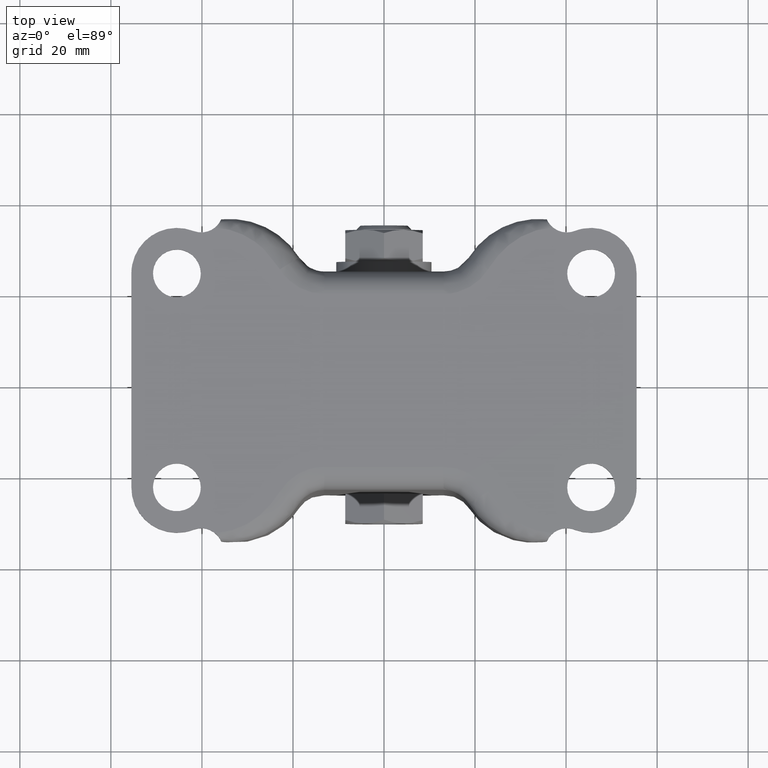
[diagram: clean part render]
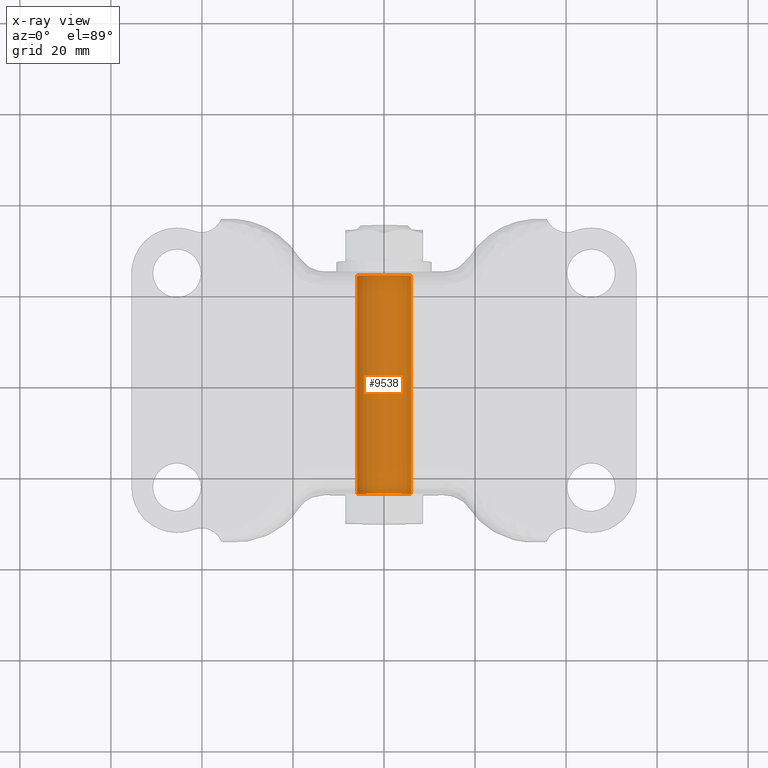
[diagram: x-ray — body ghosted, one internal face saturated and labeled with its STEP entity id]
A machine part, top view, then the same camera in x-ray: the body is ghosted and one INTERNAL B-rep face — a face not visible from any outside direction — is saturated and labeled: STEP entity #9538.
In plain terms, the highlighted face is a freeform B-spline surface patch.
Its self-contained STEP definition (entity closure, byte-faithful):
#9436=CARTESIAN_POINT('',(5.958057158181998,25.200025000000007,-60.208171407940654));
#9437=CARTESIAN_POINT('',(5.978325692691634,25.200025000000011,-60.037654371827962));
#9438=CARTESIAN_POINT('',(5.988808790531200,25.200025000000000,-59.866257237209240));
#9439=CARTESIAN_POINT('',(6.355100027740342,25.200025000000004,-53.877448446678052));
#9440=CARTESIAN_POINT('',(0.366291237209142,25.200025000000000,-53.511157209468898));
#9441=CARTESIAN_POINT('',(-5.622517553322059,25.200025000000004,-53.144865972259758));
#9442=CARTESIAN_POINT('',(-5.988808790531200,25.200025000000000,-59.133674762790960));
#9443=CARTESIAN_POINT('',(5.958057158181998,-25.231025625000004,-60.208171407940654));
#9444=CARTESIAN_POINT('',(5.978325692691634,-25.231025624999997,-60.037654371827962));
#9445=CARTESIAN_POINT('',(5.988808790531200,-25.231025625000001,-59.866257237209240));
#9446=CARTESIAN_POINT('',(6.355100027740342,-25.231025624999997,-53.877448446678052));
#9447=CARTESIAN_POINT('',(0.366291237209142,-25.231025625000001,-53.511157209468898));
#9448=CARTESIAN_POINT('',(-5.622517553322059,-25.231025624999997,-53.144865972259758));
#9449=CARTESIAN_POINT('',(-5.988808790531200,-25.231025625000001,-59.133674762790960));
#9457=(BOUNDED_SURFACE()B_SPLINE_SURFACE(2,1,((#9436,#9443),(#9437,#9444),(#9438,#9445),(#9439,#9446),(#9440,#9447),(#9441,#9448),(#9442,#9449)),.UNSPECIFIED.,.F.,.F.,.U.)B_SPLINE_SURFACE_WITH_KNOTS((3,2,2,3),(2,2),(0.0,0.397645019878172,10.338770516832460,20.279896013786740),(0.0,50.431050625000012),.UNSPECIFIED.)GEOMETRIC_REPRESENTATION_ITEM()RATIONAL_B_SPLINE_SURFACE(((0.977505800795127,0.977505800795127),(0.988284271247462,0.988284271247462),(1.0,1.0),(0.707106781186548,0.707106781186548),(1.0,1.0),(0.707106781186548,0.707106781186548),(1.0,1.0)))REPRESENTATION_ITEM('')SURFACE());
#9458=CARTESIAN_POINT('',(5.958057158177388,24.0,-60.208171407979442));
#9459=VERTEX_POINT('',#9458);
#9460=CARTESIAN_POINT('',(0.0,24.0,-53.499966000000100));
#9461=VERTEX_POINT('',#9460);
#9462=CARTESIAN_POINT('',(5.958057158177387,23.999999999999996,-60.208171407979435));
#9463=CARTESIAN_POINT('',(6.000000000000001,24.000000000000007,-59.855310717950758));
#9464=CARTESIAN_POINT('',(6.0,24.0,-59.499966000000100));
#9465=CARTESIAN_POINT('',(6.0,23.999999999999996,-53.499966000000100));
#9466=CARTESIAN_POINT('',(0.0,24.0,-53.499966000000100));
#9474=(BOUNDED_CURVE()B_SPLINE_CURVE(2,(#9462,#9463,#9464,#9465,#9466),.UNSPECIFIED.,.F.,.U.)B_SPLINE_CURVE_WITH_KNOTS((3,2,3),(0.229562473513444,0.250000000000000,0.500000000000000),.UNSPECIFIED.)CURVE()GEOMETRIC_REPRESENTATION_ITEM()RATIONAL_B_SPLINE_CURVE((0.956026754183573,0.976055948331069,1.0,0.707106781186548,1.0))REPRESENTATION_ITEM(''));
#9475=EDGE_CURVE('',#9459,#9461,#9474,.T.);
#9476=ORIENTED_EDGE('',*,*,#9475,.T.);
#9477=CARTESIAN_POINT('',(-5.988808790519139,24.0,-59.133674762593742));
#9478=VERTEX_POINT('',#9477);
#9479=CARTESIAN_POINT('',(0.0,24.0,-53.499966000000100));
#9480=CARTESIAN_POINT('',(-5.644236401061697,24.000000000000004,-53.499966000000093));
#9481=CARTESIAN_POINT('',(-5.988808790519139,24.000000000000007,-59.133674762593749));
#9489=(BOUNDED_CURVE()B_SPLINE_CURVE(2,(#9479,#9480,#9481),.UNSPECIFIED.,.F.,.U.)B_SPLINE_CURVE_WITH_KNOTS((3,3),(0.500000000000000,0.739332962230603),.UNSPECIFIED.)CURVE()GEOMETRIC_REPRESENTATION_ITEM()RATIONAL_B_SPLINE_CURVE((1.0,0.719603993296481,0.976072041648844))REPRESENTATION_ITEM(''));
#9490=EDGE_CURVE('',#9461,#9478,#9489,.T.);
#9491=ORIENTED_EDGE('',*,*,#9490,.T.);
#9492=CARTESIAN_POINT('',(-5.988808790519139,-24.001000000000001,-59.133674762593742));
#9493=VERTEX_POINT('',#9492);
#9494=CARTESIAN_POINT('',(-5.988808790519139,24.0,-59.133674762593742));
#9495=CARTESIAN_POINT('',(-5.988808790519139,-24.001000000000001,-59.133674762593742));
#9496=QUASI_UNIFORM_CURVE('',1,(#9494,#9495),.UNSPECIFIED.,.F.,.U.);
#9497=EDGE_CURVE('',#9478,#9493,#9496,.T.);
#9498=ORIENTED_EDGE('',*,*,#9497,.T.);
#9499=CARTESIAN_POINT('',(0.0,-24.001000000000001,-53.499966000000100));
#9500=VERTEX_POINT('',#9499);
#9501=CARTESIAN_POINT('',(0.0,-24.001000000000001,-53.499966000000100));
#9502=CARTESIAN_POINT('',(-5.644236401061770,-24.000999999999994,-53.499966000000093));
#9503=CARTESIAN_POINT('',(-5.988808790519139,-24.000999999999994,-59.133674762593742));
#9511=(BOUNDED_CURVE()B_SPLINE_CURVE(2,(#9501,#9502,#9503),.UNSPECIFIED.,.F.,.U.)B_SPLINE_CURVE_WITH_KNOTS((3,3),(0.500000000000000,0.739332962230605),.UNSPECIFIED.)CURVE()GEOMETRIC_REPRESENTATION_ITEM()RATIONAL_B_SPLINE_CURVE((1.0,0.719603993296479,0.976072041648848))REPRESENTATION_ITEM(''));
#9512=EDGE_CURVE('',#9500,#9493,#9511,.T.);
#9513=ORIENTED_EDGE('',*,*,#9512,.F.);
#9514=CARTESIAN_POINT('',(5.958057158177388,-24.001000000000001,-60.208171407979442));
#9515=VERTEX_POINT('',#9514);
#9516=CARTESIAN_POINT('',(5.958057158177388,-24.001000000000005,-60.208171407979435));
#9517=CARTESIAN_POINT('',(6.000000000000001,-24.000999999999998,-59.855310717950744));
#9518=CARTESIAN_POINT('',(6.0,-24.001000000000001,-59.499966000000100));
#9519=CARTESIAN_POINT('',(6.0,-24.001000000000005,-53.499966000000100));
#9520=CARTESIAN_POINT('',(0.0,-24.001000000000001,-53.499966000000100));
#9528=(BOUNDED_CURVE()B_SPLINE_CURVE(2,(#9516,#9517,#9518,#9519,#9520),.UNSPECIFIED.,.F.,.U.)B_SPLINE_CURVE_WITH_KNOTS((3,2,3),(0.229562473513444,0.250000000000000,0.500000000000000),.UNSPECIFIED.)CURVE()GEOMETRIC_REPRESENTATION_ITEM()RATIONAL_B_SPLINE_CURVE((0.956026754183573,0.976055948331070,1.0,0.707106781186548,1.0))REPRESENTATION_ITEM(''));
#9529=EDGE_CURVE('',#9515,#9500,#9528,.T.);
#9530=ORIENTED_EDGE('',*,*,#9529,.F.);
#9531=CARTESIAN_POINT('',(5.958057158177388,24.0,-60.208171407979442));
#9532=CARTESIAN_POINT('',(5.958057158177388,-24.001000000000001,-60.208171407979442));
#9533=QUASI_UNIFORM_CURVE('',1,(#9531,#9532),.UNSPECIFIED.,.F.,.U.);
#9534=EDGE_CURVE('',#9459,#9515,#9533,.T.);
#9535=ORIENTED_EDGE('',*,*,#9534,.F.);
#9536=EDGE_LOOP('',(#9476,#9491,#9498,#9513,#9530,#9535));
#9537=FACE_OUTER_BOUND('',#9536,.T.);
#9538=ADVANCED_FACE('',(#9537),#9457,.T.);